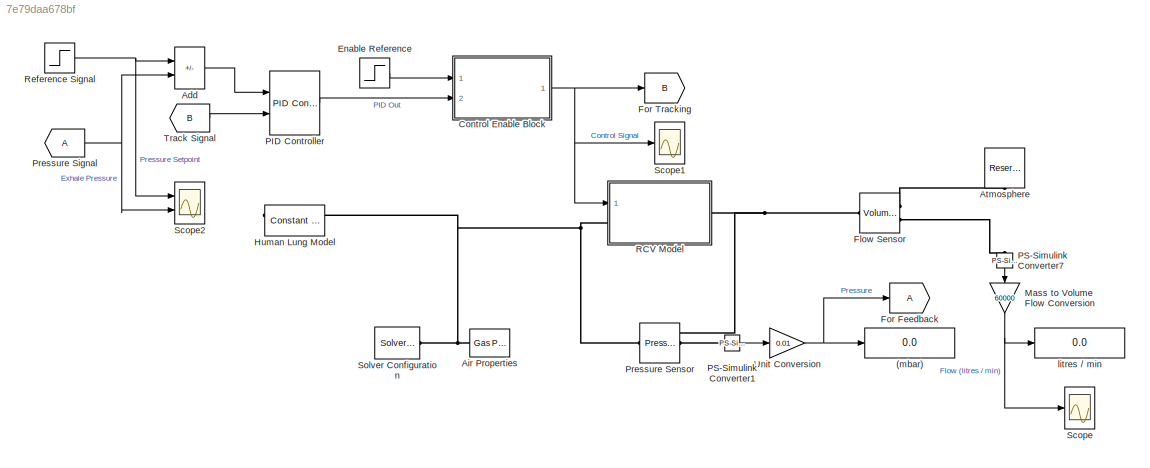
MODEL slx_7e79daa678bf
KIND model
CONFIG AbsTol = 1e-3
CONFIG EnableMultiTasking = off
CONFIG FixedStep = auto
CONFIG MaxStep = 0.001
CONFIG MinStep = auto
CONFIG RelTol = 1e-3
CONFIG SampleTimeConstraint = Unconstrained
CONFIG SolverName = VariableStepAuto
CONFIG StartTime = 0.0
CONFIG StopTime = 10
WORKSPACE source: mxarray member
WORKSPACE O2 = 0.543892545144
WORKSPACE O2_conc = 0.301567785759
WORKSPACE v_area = 1
BLOCK [Display] (mbar)
  Decimation = 1
  Ports = [1]
BLOCK [Sum] Add
  IconShape = rectangular
  Inputs = -+
  Ports = [2, 1]
BLOCK [Reference] Air Properties  REF=fl_lib/Gas/Utilities/Gas Properties (G)
  NameLocation = top
  Ports = [0, 0, 0, 0, 0, 0, 1]
  SourceBlock = fl_lib/Gas/Utilities/Gas Properties (G)
  SourceProductBaseCode = SS
  SourceType = Gas Properties (G)
BLOCK [Reference] Atmosphere  REF=fl_lib/Gas/Elements/Reservoir (G)
  NameLocation = top
  Ports = [0, 0, 0, 0, 0, 1]
  SourceBlock = fl_lib/Gas/Elements/Reservoir (G)
  SourceProductBaseCode = SS
  SourceType = Reservoir (G)
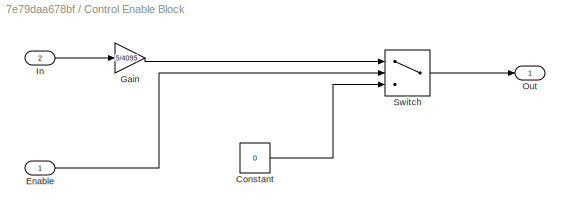
BLOCK [SubSystem] Control Enable Block
  Ports = [2, 1]
  RequestExecContextInheritance = off
BLOCK [Constant] Control Enable Block/Constant
  Value = 0
BLOCK [Inport] Control Enable Block/Enable
BLOCK [Gain] Control Enable Block/Gain
  Gain = 5/4095
BLOCK [Inport] Control Enable Block/In
  Port = 2
BLOCK [Outport] Control Enable Block/Out
BLOCK [Switch] Control Enable Block/Switch
  Criteria = u2 > Threshold
  InputSameDT = off
  SaturateOnIntegerOverflow = off
  Threshold = 0.5
BLOCK [Step] Enable Reference
  NameLocation = top
  SampleTime = 0
  Time = 2
BLOCK [Reference] Flow Sensor  REF=fl_lib/Gas/Sensors/Volumetric Flow Rate
Sensor (G)
  Ports = [0, 0, 0, 0, 0, 1, 2]
  SourceBlock = fl_lib/Gas/Sensors/Volumetric Flow Rate\nSensor (G)
  SourceProductBaseCode = SS
  SourceType = Volumetric Flow Rate\nSensor (G)
BLOCK [Goto] For Feedback
  NameLocation = top
BLOCK [Goto] For Tracking
  GotoTag = B
  NameLocation = top
BLOCK [Reference] Human Lung Model  REF=fl_lib/Gas/Elements/Constant Volume
Chamber (G)
  Ports = [0, 0, 0, 0, 0, 2]
  SourceBlock = fl_lib/Gas/Elements/Constant Volume\nChamber (G)
  SourceProductBaseCode = SS
  SourceType = Constant Volume\nChamber (G)
BLOCK [Gain] Mass to Volume Flow Conversion
  Gain = 60000
  NameLocation = right
BLOCK [Reference] PID Controller  REF=pid_lib/PID Controller
  Ports = [2, 1]
  SourceBlock = pid_lib/PID Controller
  SourceProductBaseCode = SL
  SourceType = PID 1dof
BLOCK [Reference] PS-Simulink Converter1  REF=nesl_utility/PS-Simulink
Converter
  Ports = [0, 1, 0, 0, 0, 1]
  SourceBlock = nesl_utility/PS-Simulink\nConverter
  SourceProductBaseCode = SS
  SourceType = PS-Simulink\nConverter
BLOCK [Reference] PS-Simulink Converter7  REF=nesl_utility/PS-Simulink
Converter
  NameLocation = left
  Ports = [0, 1, 0, 0, 0, 1]
  SourceBlock = nesl_utility/PS-Simulink\nConverter
  SourceProductBaseCode = SS
  SourceType = PS-Simulink\nConverter
BLOCK [Reference] Pressure Sensor  REF=fl_lib/Gas/Sensors/Pressure &
Temperature Sensor
(G)
  Ports = [0, 0, 0, 0, 0, 1, 3]
  SourceBlock = fl_lib/Gas/Sensors/Pressure &\nTemperature Sensor\n(G)
  SourceProductBaseCode = SS
  SourceType = Pressure &\nTemperature Sensor\n(G)
BLOCK [From] Pressure Signal
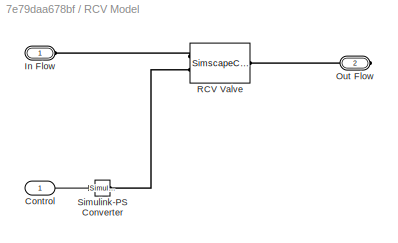
BLOCK [SubSystem] RCV Model
  Ports = [1, 0, 0, 0, 0, 1, 1]
  RequestExecContextInheritance = off
BLOCK [Inport] RCV Model/Control
BLOCK [PMIOPort] RCV Model/In Flow
  Side = Left
BLOCK [PMIOPort] RCV Model/Out Flow
  Port = 2
  Side = Right
BLOCK [SimscapeComponentBlock] RCV Model/RCV Valve
  ClassName = rcv_exhale_volt_pr_flow_lookup
  ComponentPath = rcv_exhale_volt_pr_flow_lookup
  ComponentVariantNames = ["rcv_exhale_volt_pr_flow_lookup"]
  ComponentVariants = ["rcv_exhale_volt_pr_flow_lookup"]
  CopyFcn = simscape.engine.sli.internal.componentblockcallback(gcbh,'COPY')
  InternalSimscapePortConfiguration = {"Bottom":[],"Left":[{"id":"A","label":"A","type":"foundation.gas.gas"},{"id":"v_posin","label":"v_posin","type":"input"}],"Right":[{"id":"B","label":"B","type":"foundation.gas.gas"}],"Top":[]}
  MaskType = RCV_Exhale Valve for Ventilator (G)
  Ports = [0, 0, 0, 0, 0, 2, 1]
  PreCopyFcn = simscape.engine.sli.internal.componentblockcallback(gcbh,'PRECOPY')
  PreDeleteFcn = simscape.engine.sli.internal.componentblockcallback(gcbh,'PREDELETE')
  SchemaVersion = 1
  SourceFile = rcv_exhale_volt_pr_flow_lookup
  area = 0.01
  area_conf = compiletime
  area_unit = m^2
  laminar_fraction = 1e-3
  laminar_fraction_conf = compiletime
  laminar_fraction_unit = 1
  rho_nominal = 0
  rho_nominal_conf = compiletime
  rho_nominal_unit = kg/m^3
BLOCK [Reference] RCV Model/Simulink-PS Converter  REF=nesl_utility/Simulink-PS
Converter
  Ports = [1, 0, 0, 0, 0, 0, 1]
  SourceBlock = nesl_utility/Simulink-PS\nConverter
  SourceProductBaseCode = SS
  SourceType = Simulink-PS\nConverter
BLOCK [Step] Reference Signal
  After = 30
  NameLocation = top
  SampleTime = 0
BLOCK [Scope] Scope
  Floating = off
  NumInputPorts = 1
  Ports = [1]
  ScopeSpecificationString = Simulink.scopes.TimeScopeBlockCfg('CurrentConfiguration', extmgr.ConfigurationSet(extmgr.Configuration('Core','General UI',true),extmgr.Configuration('Core','Source UI',true),extmgr.Configuration('Sources','WiredSimulink',true,'DataLoggingVariableName','ScopeData1'),extmgr.Configuration('Visuals','Time Domain',true,'SerializedDisplays',{struct('MinYLimReal','-9.37756','MaxYLimReal','84.39811','YLa...<+1557ch>
BLOCK [Scope] Scope1
  Floating = off
  NumInputPorts = 1
  Ports = [1]
  ScopeSpecificationString = Simulink.scopes.TimeScopeBlockCfg('CurrentConfiguration', extmgr.ConfigurationSet(extmgr.Configuration('Core','General UI',true),extmgr.Configuration('Core','Source UI',true),extmgr.Configuration('Sources','WiredSimulink',true,'DataLoggingVariableName','ScopeData2'),extmgr.Configuration('Visuals','Time Domain',true,'SerializedDisplays',{struct('MinYLimReal','-0.625','MaxYLimReal','5.625','YLabelRe...<+1536ch>
BLOCK [Scope] Scope2
  Floating = off
  NumInputPorts = 2
  Ports = [2]
  ScopeSpecificationString = Simulink.scopes.TimeScopeBlockCfg('CurrentConfiguration', extmgr.ConfigurationSet(extmgr.Configuration('Core','General UI',true),extmgr.Configuration('Core','Source UI',true),extmgr.Configuration('Sources','WiredSimulink',true,'DataLoggingVariableName','ScopeData1'),extmgr.Configuration('Visuals','Time Domain',true,'SerializedDisplays',{struct('MinYLimReal','-7.59938','MaxYLimReal','68.39438','YLa...<+1706ch>
BLOCK [Reference] Solver Configuration  REF=nesl_utility/Solver
Configuration
  Ports = [0, 0, 0, 0, 0, 0, 1]
  SourceBlock = nesl_utility/Solver\nConfiguration
  SourceProductBaseCode = SS
  SourceType = Solver\nConfiguration
BLOCK [From] Track Signal
  GotoTag = B
BLOCK [Gain] Unit Conversion
  Gain = 0.01
BLOCK [Display] litres // min
  Decimation = 1
  Ports = [1]
LINE Add:1 -> PID Controller:1
LINE Control Enable Block/Constant:1 -> Control Enable Block/Switch:3
LINE Control Enable Block/Enable:1 -> Control Enable Block/Switch:2
LINE Control Enable Block/Gain:1 -> Control Enable Block/Switch:1
LINE Control Enable Block/In:1 -> Control Enable Block/Gain:1
LINE Control Enable Block/Switch:1 -> Control Enable Block/Out:1
NET Control Enable Block:1 -> For Tracking:1, RCV Model:1, Scope1:1
LINE Enable Reference:1 -> Control Enable Block:1
NET Mass to Volume Flow Conversion:1 -> Scope:1, litres // min:1
LINE PID Controller:1 -> Control Enable Block:2
LINE PS-Simulink Converter1:1 -> Unit Conversion:1
LINE PS-Simulink Converter7:1 -> Mass to Volume Flow Conversion:1
NET Pressure Signal:1 -> Add:2, Scope2:2
LINE RCV Model/Control:1 -> RCV Model/Simulink-PS Converter:1
NET Reference Signal:1 -> Add:1, Scope2:1
LINE Track Signal:1 -> PID Controller:2
NET Unit Conversion:1 -> (mbar):1, For Feedback:1
PNET net1: Air Properties:RConn1 -- Human Lung Model:LConn1 -- Pressure Sensor:LConn1 -- RCV Model:LConn1 -- Solver Configuration:RConn1
PLINE Atmosphere:LConn1 -- Flow Sensor:RConn1
PNET net2: Flow Sensor:LConn1 -- Pressure Sensor:RConn1 -- RCV Model:RConn1
PLINE Flow Sensor:RConn2 -- PS-Simulink Converter7:LConn1
PLINE PS-Simulink Converter1:LConn1 -- Pressure Sensor:RConn2
PLINE RCV Model/In Flow:RConn1 -- RCV Model/RCV Valve:LConn1
PLINE RCV Model/Out Flow:RConn1 -- RCV Model/RCV Valve:RConn1
PLINE RCV Model/RCV Valve:LConn2 -- RCV Model/Simulink-PS Converter:RConn1
note: NET lines group one-source signal fan-out (src -> all destinations, sorted); 1:1 wires keep LINE; PNET lines group multi-terminal physical nets as a canonical sorted terminal list (undirected conserving connections); 2-terminal nets keep the pairwise PLINE form
